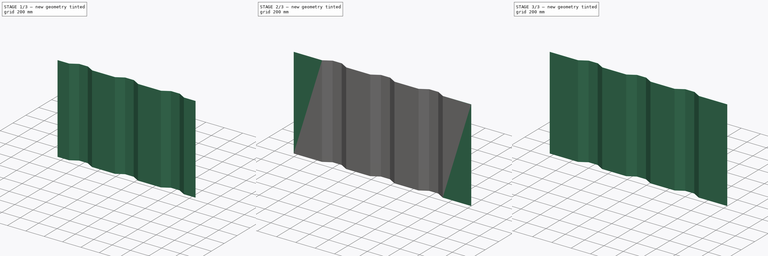
[diagram: build sequence overview — one tinted view per stage of 3, left to right]
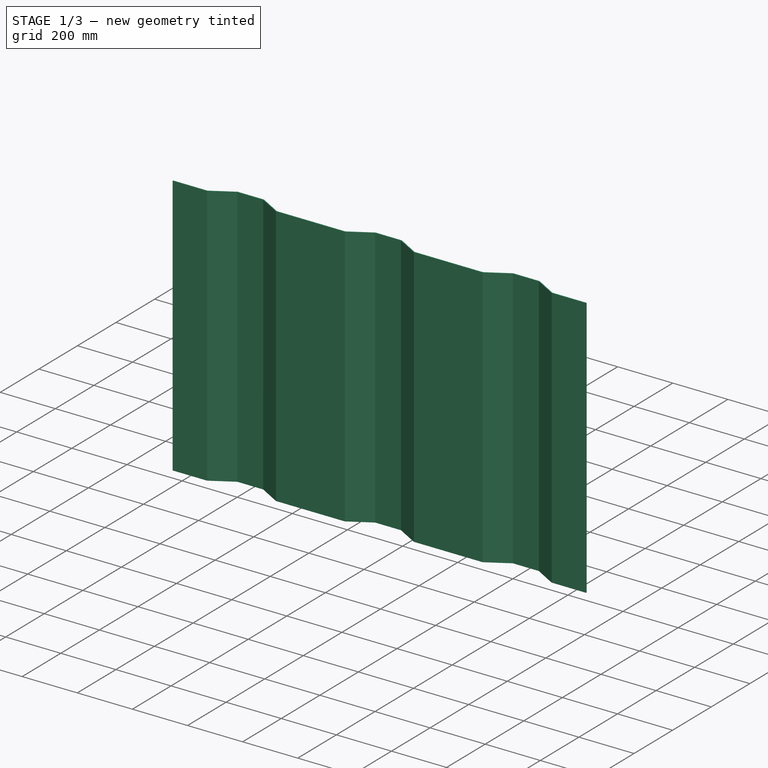
[diagram: stage 1 of 3 — iso view after this stage's code; geometry added in this stage tinted green]
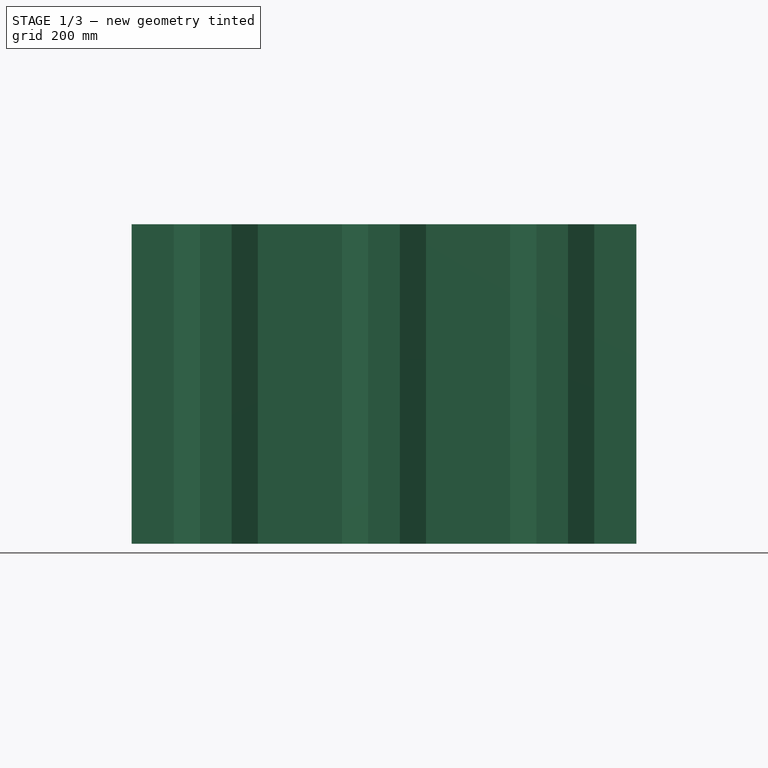
[diagram: stage 1 of 3 — front view after this stage's code; geometry added in this stage tinted green]
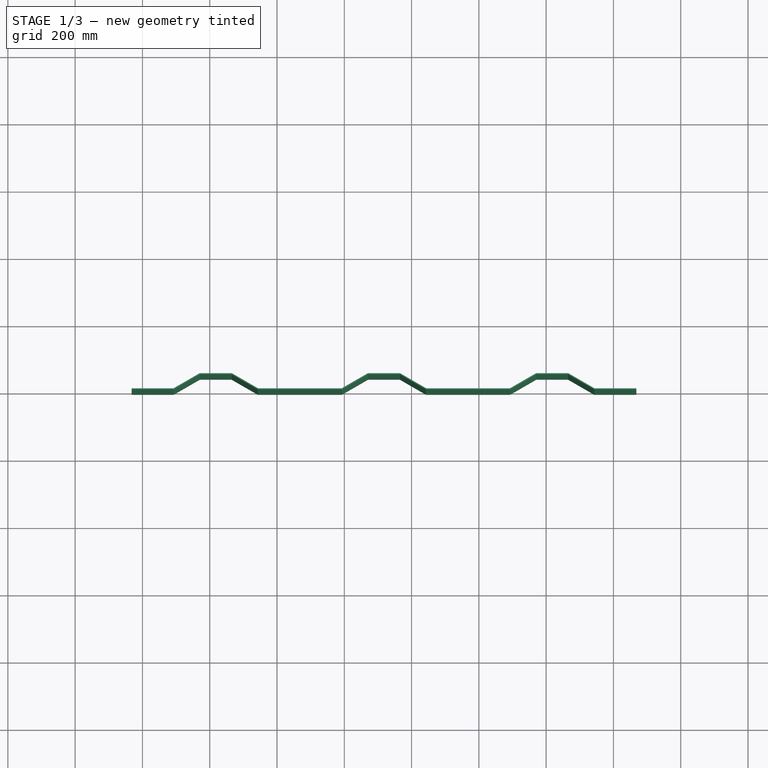
[diagram: stage 1 of 3 — top view after this stage's code; geometry added in this stage tinted green]
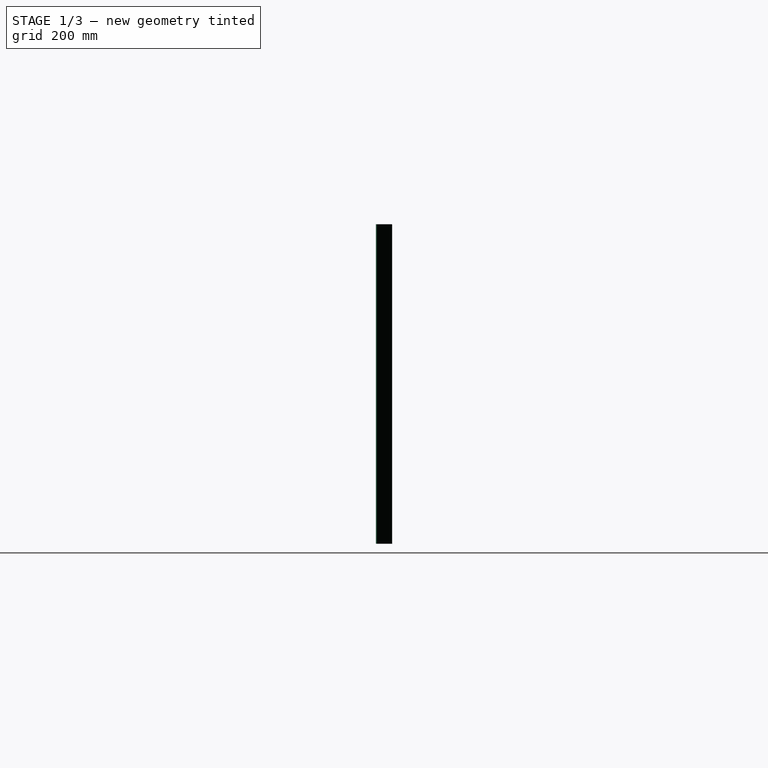
[diagram: stage 1 of 3 — right view after this stage's code; geometry added in this stage tinted green]
FCSTD DOCUMENT  (FreeCAD 0.18R4 (GitTag))
Label: door-wall
License: All rights reserved
LicenseURL: http://en.wikipedia.org/wiki/All_rights_reserved
objects: Sketcher::SketchObject×2, PartDesign::Pad×2, PartDesign::Fillet×2, PartDesign::LinearPattern×1, PartDesign::Body×1
note: 10 computed .brp shape members not serialized (recipe doc carries the construction recipe); baked Part::Feature solids carry a one-line shape summary decoded from their .brp

FEATURE [Sketcher::SketchObject] Sketch
  MapMode = 5
  Support = -> [XY_Plane]
  sketch-geometry (12):
    g0: LineSegment StartX=168 StartY=0 StartZ=0 EndX=292.196 EndY=0 EndZ=0
    g1: LineSegment StartX=292.196 StartY=0 StartZ=0 EndX=370.139 EndY=45 EndZ=0
    g2: LineSegment StartX=370.139 StartY=45 StartZ=0 EndX=465.861 EndY=45 EndZ=0
    g3: LineSegment StartX=465.861 StartY=45 StartZ=0 EndX=543.804 EndY=0 EndZ=0
    g4: LineSegment StartX=543.804 StartY=0 StartZ=0 EndX=668 EndY=0 EndZ=0
    g5: LineSegment StartX=168 StartY=-3 StartZ=0 EndX=293 EndY=-3 EndZ=0
    g6: LineSegment StartX=293 StartY=-3 StartZ=0 EndX=370.942 EndY=42 EndZ=0
    g7: LineSegment StartX=370.942 StartY=42 StartZ=0 EndX=465.058 EndY=42 EndZ=0
    g8: LineSegment StartX=465.058 StartY=42 StartZ=0 EndX=543 EndY=-3 EndZ=0
    g9: LineSegment StartX=543 StartY=-3 StartZ=0 EndX=668 EndY=-3 EndZ=0
    g10: LineSegment StartX=168 StartY=0 StartZ=0 EndX=168 EndY=-3 EndZ=0
    g11: LineSegment StartX=668 StartY=-3 StartZ=0 EndX=668 EndY=0 EndZ=0
  constraints (36):
    c: PointOnObject(g0,g-1)
    c: Horizontal(g0)
    c: Coincident(g1,g0)
    c: Coincident(g2,g1)
    c: Horizontal(g2)
    c: Coincident(g4,g3)
    c: Horizontal(g4)
    c: Distance(g3) = 90
    c: Distance(g1) = 90
    c: PointOnObject(g4,g-1)
    c: Coincident(g2,g3)
    c: DistanceX(g2,g2) = 95.723
    c: Angle(g4,g3) = 2.61799
    c: DistanceX(g-1,g0) = 168
    c: Equal(g0,g4)
    c: Horizontal(g5)
    c: Coincident(g6,g5)
    c: Coincident(g7,g6)
    c: Horizontal(g7)
    c: Coincident(g8,g7)
    c: Coincident(g9,g8)
    c: Horizontal(g9)
    c: PointOnObject(g8,g5)
    c: Coincident(g10,g0)
    c: Vertical(g10)
    c: Coincident(g11,g9)
    c: Vertical(g11)
    c: Coincident(g11,g4)
    c: Coincident(g10,g5)
    c: DistanceY(g7,g2) = 3
    c: Parallel(g3,g8)
    c: Parallel(g6,g1)
    c: Distance(g0,g6) = 3
    c: Distance(g8,g3) = 3
    c: DistanceY(g11,g11) = 3
    c: DistanceX(g0,g4) = 500
FEATURE [PartDesign::Pad] Pad
  Length = 950
  Length2 = 100
  Profile = -> Sketch
  Refine = true
  Type = 0
FEATURE [PartDesign::LinearPattern] LinearPattern
  BaseFeature = -> Pad
  Direction = -> X_Axis
  Length = 1000
  Occurrences = 3
  Originals = -> [Pad]
  Refine = true
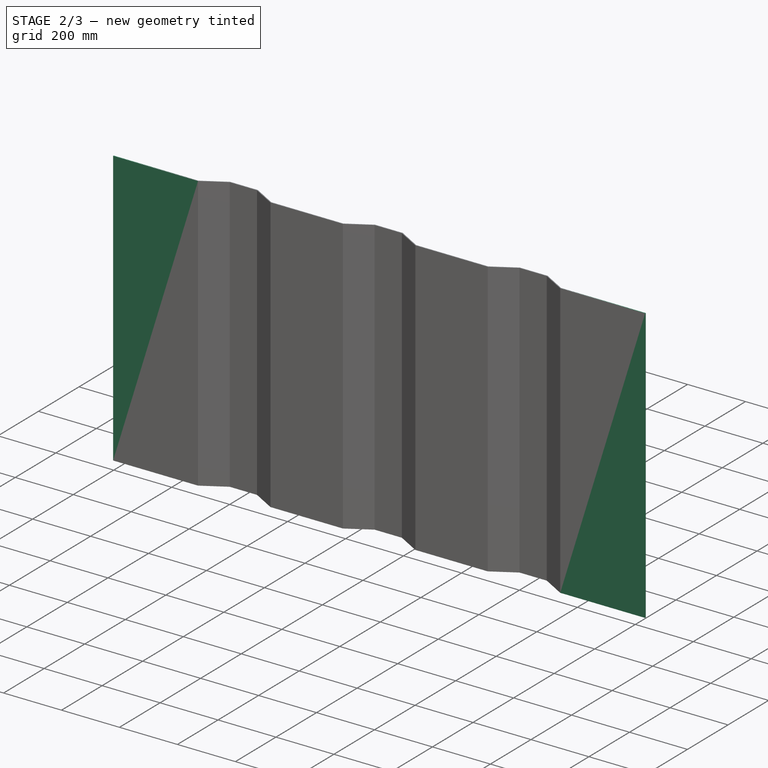
[diagram: stage 2 of 3 — iso view after this stage's code; geometry added in this stage tinted green]
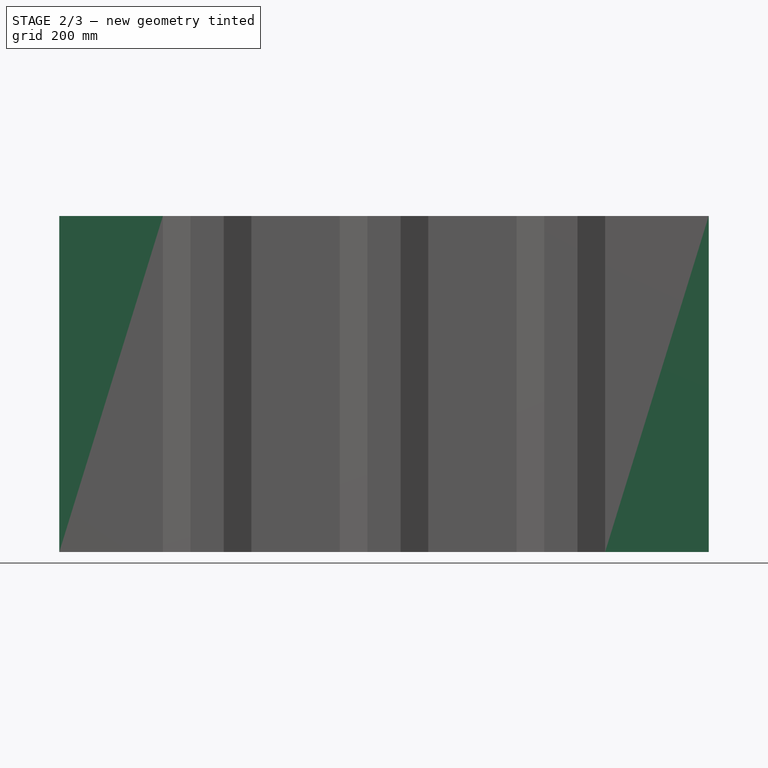
[diagram: stage 2 of 3 — front view after this stage's code; geometry added in this stage tinted green]
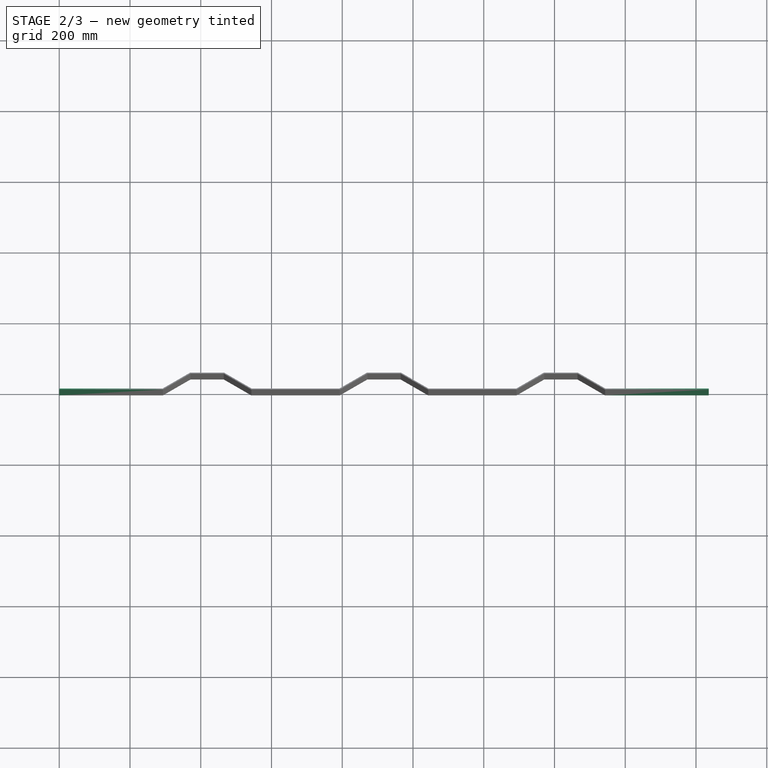
[diagram: stage 2 of 3 — top view after this stage's code; geometry added in this stage tinted green]
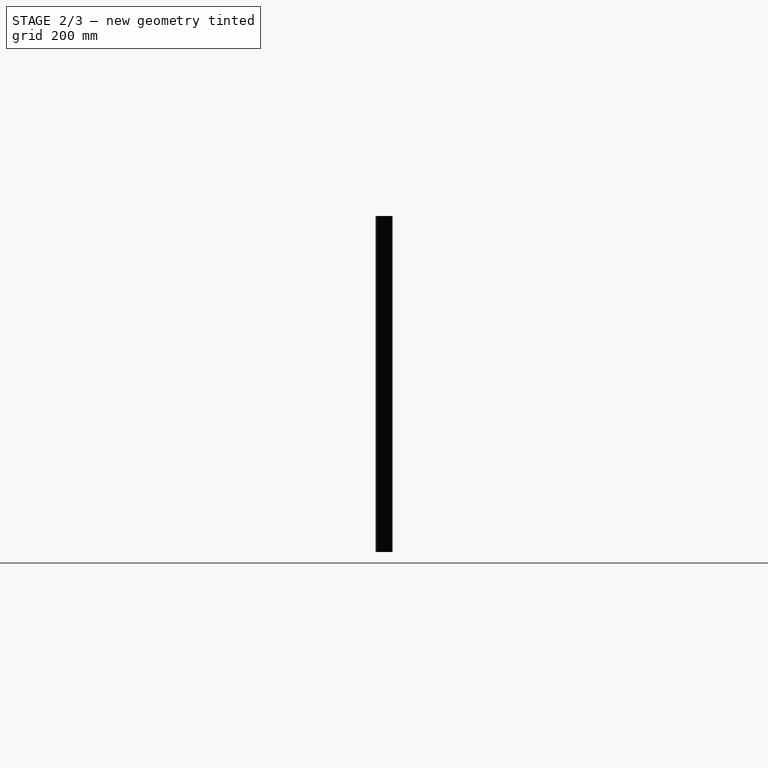
[diagram: stage 2 of 3 — right view after this stage's code; geometry added in this stage tinted green]
FEATURE [Sketcher::SketchObject] Sketch001
  ExternalGeometry = -> [LinearPattern]
  MapMode = 5
  Placement = pos=(0,0,0) rot=(0,0.707107,0.707107;3.14159rad)
  Support = -> [LinearPattern]
  sketch-geometry (8):
    g0: LineSegment StartX=-168 StartY=950 StartZ=0 EndX=0 EndY=950 EndZ=0
    g1: LineSegment StartX=0 StartY=950 StartZ=0 EndX=0 EndY=0 EndZ=0
    g2: LineSegment StartX=0 StartY=0 StartZ=0 EndX=-168 EndY=0 EndZ=0
    g3: LineSegment StartX=-168 StartY=0 StartZ=0 EndX=-168 EndY=950 EndZ=0
    g4: LineSegment StartX=-1668 StartY=950 StartZ=0 EndX=-1836 EndY=950 EndZ=0
    g5: LineSegment StartX=-1836 StartY=950 StartZ=0 EndX=-1836 EndY=0 EndZ=0
    g6: LineSegment StartX=-1836 StartY=0 StartZ=0 EndX=-1668 EndY=0 EndZ=0
    g7: LineSegment StartX=-1668 StartY=0 StartZ=0 EndX=-1668 EndY=950 EndZ=0
  constraints (21):
    c: Coincident(g0,g1)
    c: Coincident(g1,g2)
    c: Coincident(g2,g3)
    c: Coincident(g3,g0)
    c: Horizontal(g0)
    c: Horizontal(g2)
    c: Vertical(g1)
    c: Vertical(g3)
    c: Coincident(g0,g-3)
    c: Coincident(g1,g-1)
    c: Coincident(g4,g5)
    c: Coincident(g5,g6)
    c: Coincident(g6,g7)
    c: Coincident(g7,g4)
    c: Horizontal(g4)
    c: Horizontal(g6)
    c: Vertical(g5)
    c: Vertical(g7)
    c: Coincident(g4,g-4)
    c: PointOnObject(g5,g-1)
    c: DistanceX(g4,g0) = 1836
FEATURE [PartDesign::Pad] Pad001
  BaseFeature = -> LinearPattern
  Length = 3
  Length2 = 100
  Profile = -> Sketch001
  Refine = true
  Reversed = true
  Type = 0
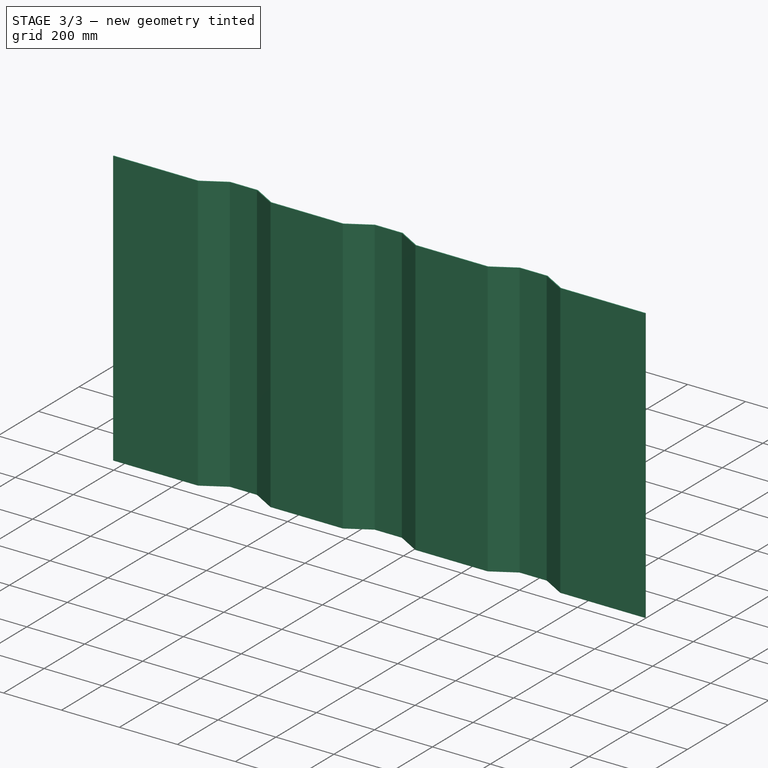
[diagram: stage 3 of 3 — iso view after this stage's code; geometry added in this stage tinted green]
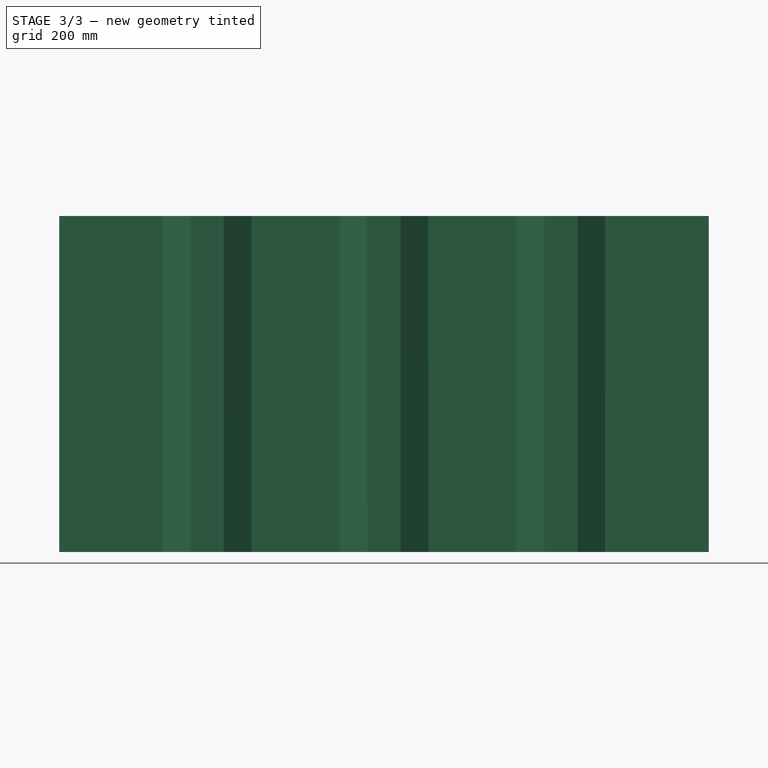
[diagram: stage 3 of 3 — front view after this stage's code; geometry added in this stage tinted green]
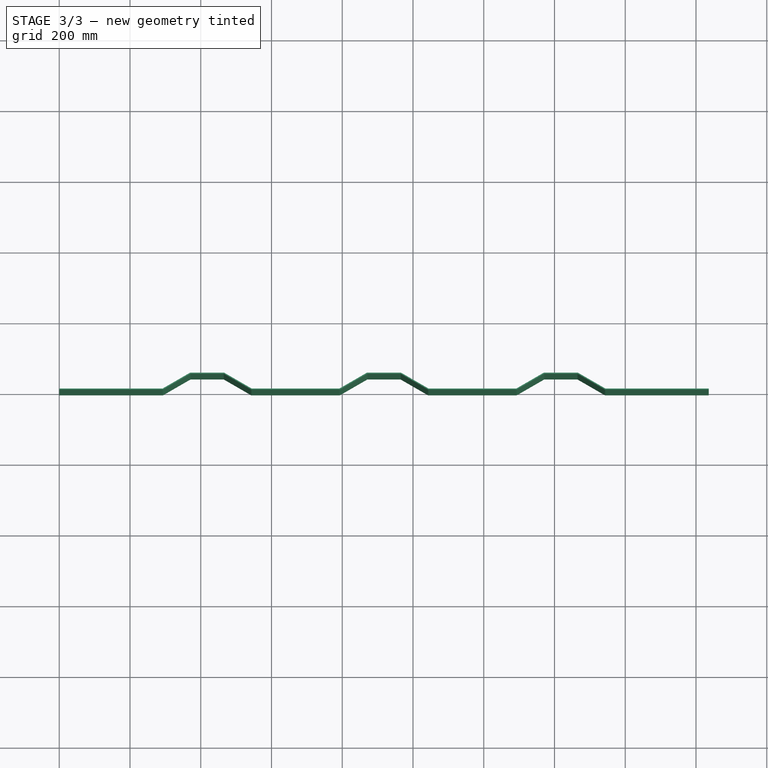
[diagram: stage 3 of 3 — top view after this stage's code; geometry added in this stage tinted green]
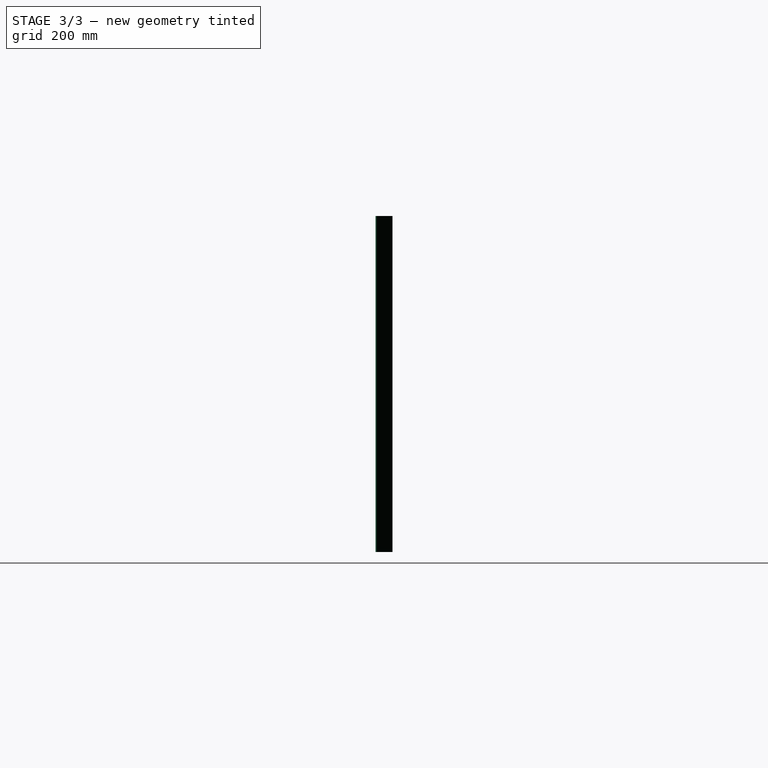
[diagram: stage 3 of 3 — right view after this stage's code; geometry added in this stage tinted green]
FEATURE [PartDesign::Fillet] Fillet
  Base = -> Pad001 [Edge32,Edge20,Edge8,Edge24,Edge12,Edge1,Edge77,Edge69,Edge60,Edge79,Edge71,Edge63]
  BaseFeature = -> Pad001
  Radius = 3
FEATURE [PartDesign::Fillet] Fillet001
  Base = -> Fillet [Edge87,Edge96,Edge98,Edge108,Edge110,Edge120,Edge46,Edge3,Edge97,Edge99,Edge109,Edge111]
  BaseFeature = -> Fillet
  Radius = 6
FEATURE [PartDesign::Body] Body
  Group = -> [Sketch,Pad,LinearPattern,Sketch001,Pad001,Fillet,Fillet001]
  Origin = -> Origin
  Tip = -> Fillet001
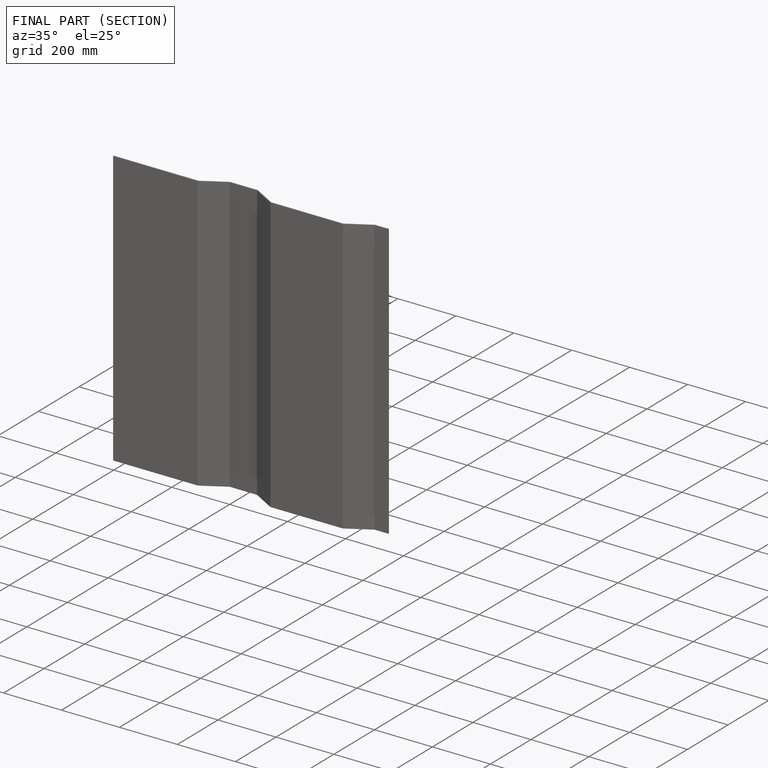
[diagram: finished part — half-section view (interior)]
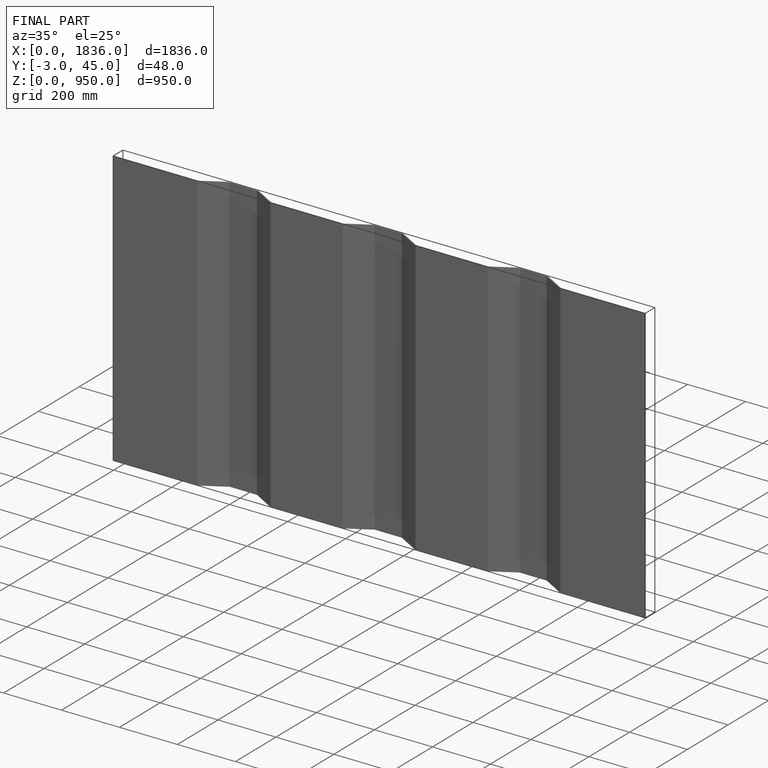
[diagram: finished part — iso view with bounding-box wireframe]
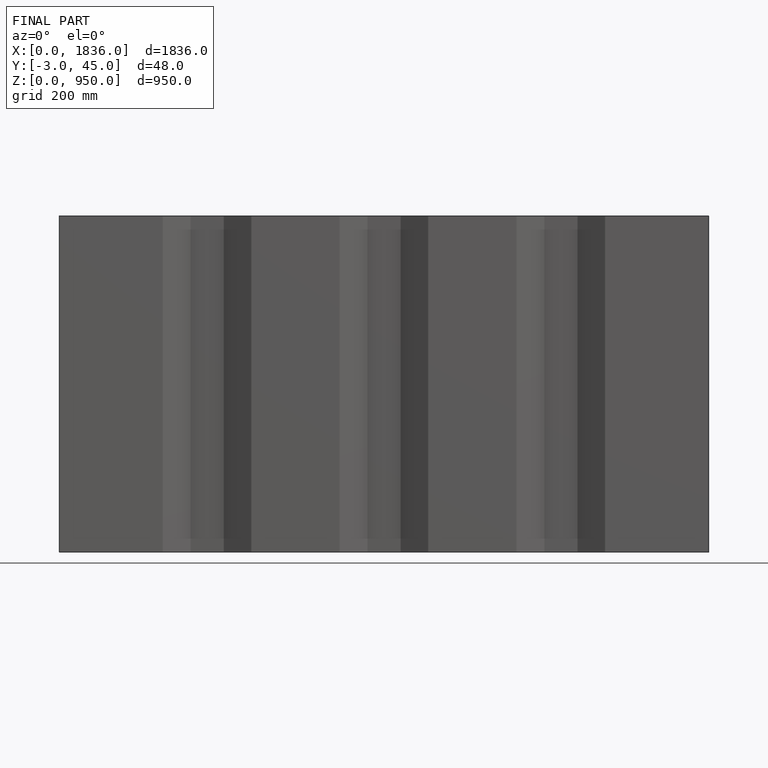
[diagram: finished part — front view with bounding-box wireframe]
